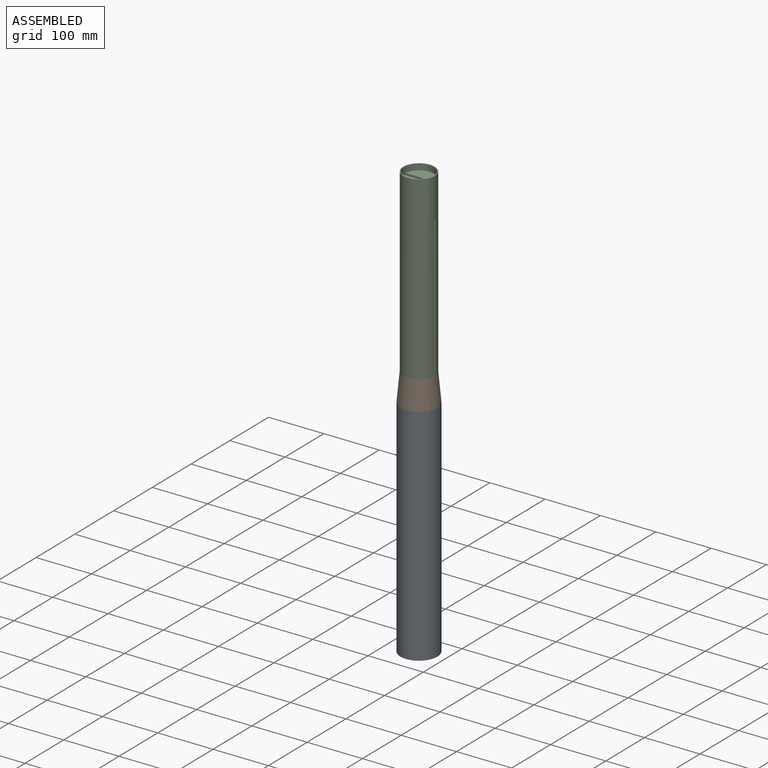
[diagram: assembled view]
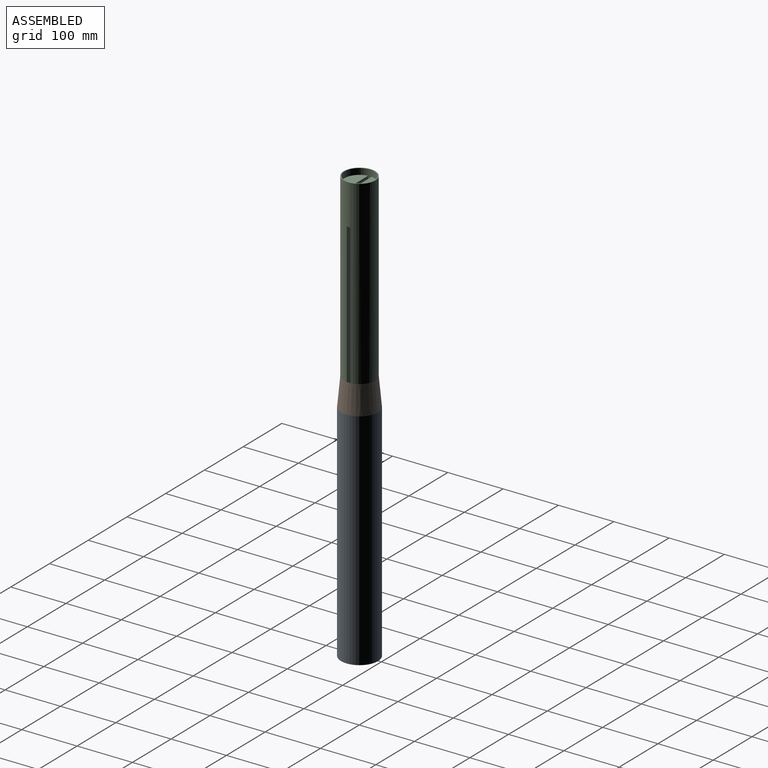
[diagram: assembled view, second angle]
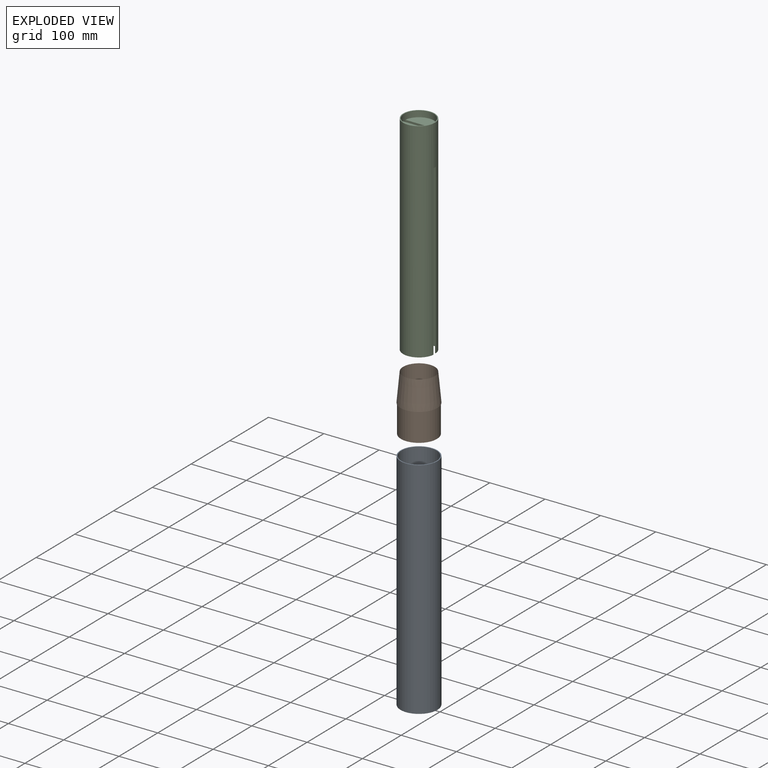
[diagram: exploded view]
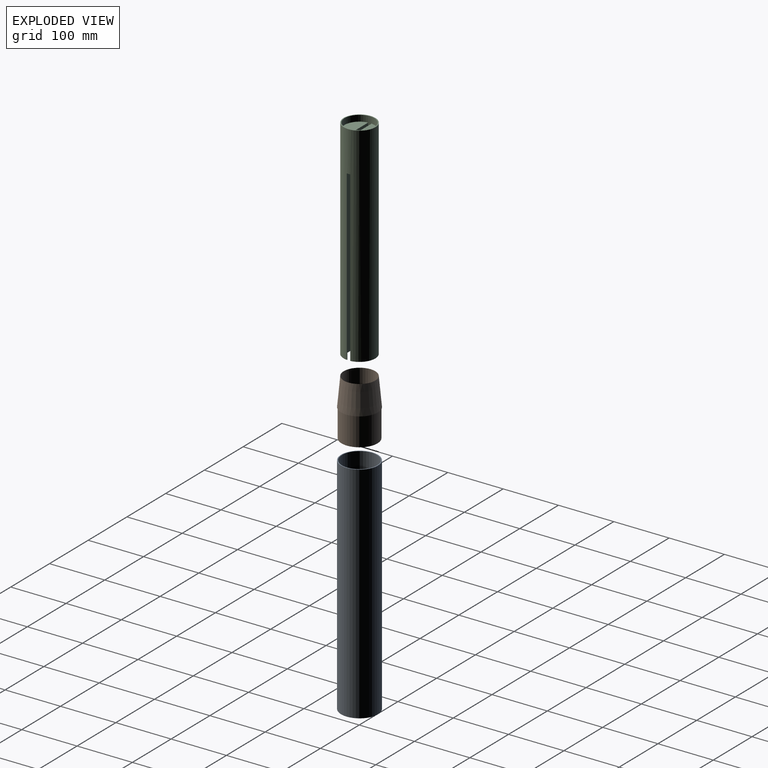
[diagram: exploded view, second angle]
ASSEMBLY  parts=3 mates=2
PART A: 4 faces, bbox 66.7x66.7x406.4 mm
  f0: cylinder r=31.75mm len=406.4mm, axis (0,0,-1), area 81073.2mm2, adj f2,f3
  f1: cylinder r=33.34mm len=406.4mm, axis (0,0,-1), area 85126.9mm2, adj f2,f3
  f2: plane 66.68x66.68mm, normal (0,0,1), area 324.6mm2, adj f0,f1
  f3: plane 66.68x66.68mm, normal (0,0,-1), area 324.6mm2, adj f0,f1
PART B: 5 faces, bbox 66.7x66.7x101.6 mm
  f0: cylinder r=28.57mm len=101.6mm, axis (0,0,1), area 18241.5mm2, adj f1,f4
  f1: plane 65.08x65.08mm, normal (0,0,-1), area 760.7mm2, adj f0,f2
  f2: cylinder r=32.54mm len=65.08mm, axis (0,0,1), area 10385.5mm2, adj f1,f3
  f3: plane 66.68x66.68mm, normal (0,0,-1), area 165.6mm2, adj f2,f4
  f4: cone r=33.34mm half-angle=5.4deg, axis (0,0,-1), area 9924.1mm2, adj f0,f3
PART C: 15 faces, bbox 57.2x57.2x377.8 mm
  f0: cylinder r=26.99mm len=53.6mm, axis (0,0,-1), area 871.4mm2, adj f6,f9,f14
  f1: cylinder r=26.99mm len=53.6mm, axis (0,0,-1), area 871.4mm2, adj f2,f10,f12
  f2: plane 56.8x25.4mm, normal (0,0,-1), area 128.5mm2, adj f1,f4,f10
  f3: cylinder r=26.99mm len=73.03mm, axis (0,0,-1), area 2672.4mm2, adj f5,f7,f8,f9,f10,f11,f13
  f4: cylinder r=28.57mm len=377.83mm, axis (0,0,-1), area 63956.5mm2, adj f2,f5,f6,f7,f8,f9,f10
  f5: plane 57.15x57.15mm, normal (0,0,1), area 277.1mm2, adj f3,f4
  f6: plane 56.8x25.4mm, normal (0,0,-1), area 128.5mm2, adj f0,f4,f9
  f7: plane 6.35x1.78mm, normal (0,0,-1), area 10.1mm2, adj f3,f4,f9,f10
  f8: plane 6.35x1.78mm, normal (0,0,-1), area 10.1mm2, adj f3,f4,f9,f10
  f9: plane 366.71x56.8mm, normal (0,1,0), area 20034.3mm2, adj f0,f3,f4,f6,f7,f8,f13,f14
  f10: plane 366.71x56.8mm, normal (0,-1,0), area 20034.3mm2, adj f1,f2,f3,f4,f7,f8,f11,f12
  f11: plane 53.6x23.81mm, normal (0,0,1), area 973.1mm2, adj f3,f10
  f12: plane 53.6x23.81mm, normal (0,0,-1), area 973.1mm2, adj f1,f10
  f13: plane 53.6x23.81mm, normal (0,0,1), area 973.1mm2, adj f3,f9
  f14: plane 53.6x23.81mm, normal (0,0,-1), area 973.1mm2, adj f0,f9
PLACE A t=(-225.67,-217.33,200.76)mm
PLACE B t=(-225.67,-217.33,592.87)mm
PLACE C t=(-225.67,-217.33,592.87)mm
MATE fastened B.f0 <-> C.f4  axis (0,0,-1) through (-225.67,-217.33,403.96)mm
MATE fastened A.f0 <-> B.f0  axis (0,0,-1) through (-225.67,-217.33,403.96)mm
